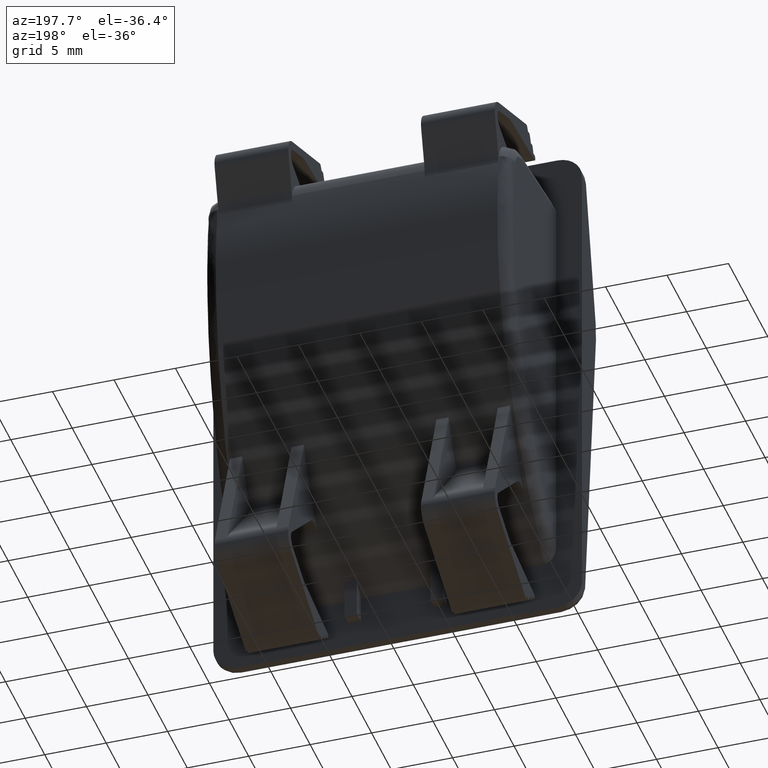
[diagram: clean part render]
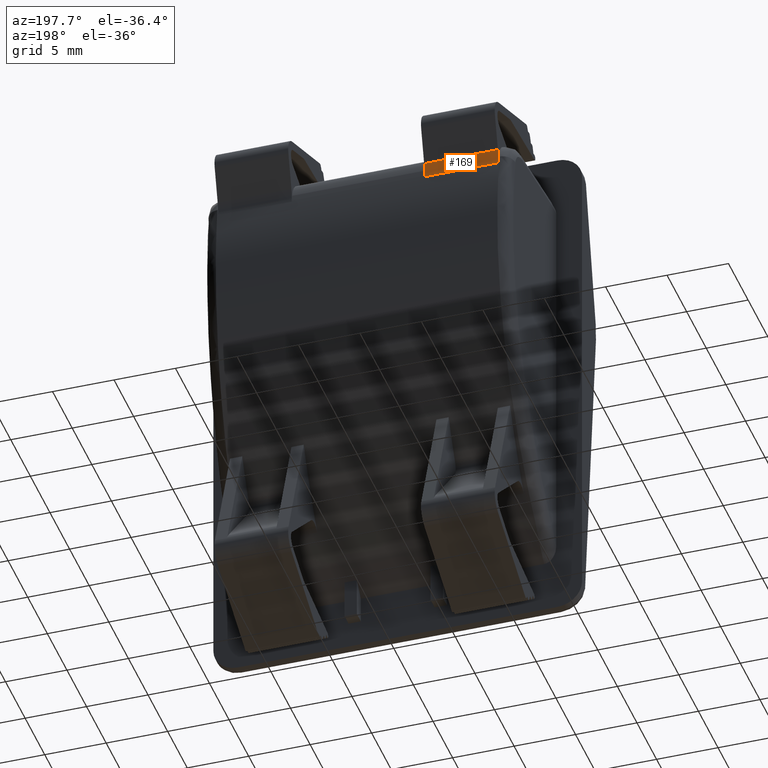
[diagram: same view with one face highlighted and labeled with its STEP entity id]
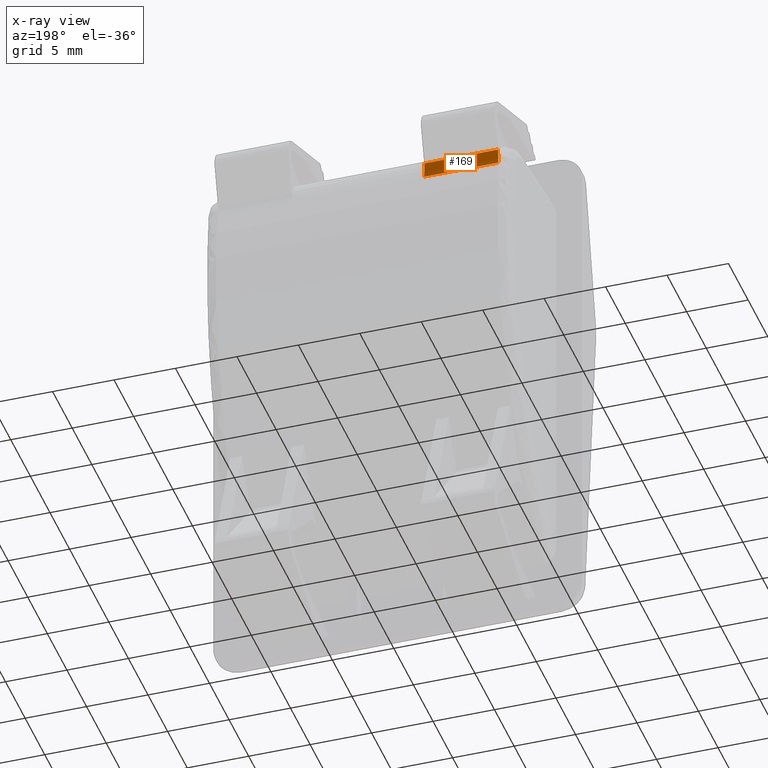
[diagram: x-ray of the same camera — body ghosted, the highlighted face saturated]
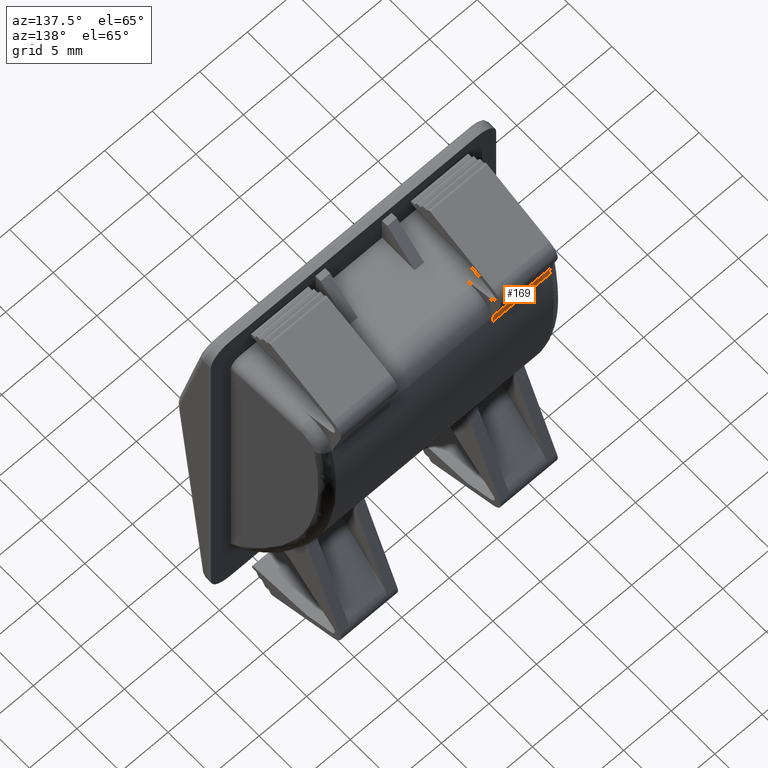
[diagram: same view with one face highlighted and labeled with its STEP entity id]
A machine part, auxiliary view. The second image highlights one B-rep face of the part: STEP entity #169.
The next image is the same camera in x-ray: the body ghosted, the highlighted face saturated — about 0% of this face is hidden behind the body in this view.
A second angle (auxiliary view) of the same face is appended — the face is thin or edge-on in the first view.
In plain terms, the highlighted cylindrical surface (partial cylindrical patch) has radius 3 mm, axis along (1, -0, -0).
Its self-contained STEP definition (entity closure, byte-faithful):
#169=ADVANCED_FACE('',(#1540),#1539,.F.);
#1539=CYLINDRICAL_SURFACE('',#3153,3.00000000000E+000);
#1540=FACE_OUTER_BOUND('',#3154,.T.);
#3150=CARTESIAN_POINT('',(9.88600000000E+002,1.70819010984E+001,8.17488111700E+000));
#3151=DIRECTION('',(1.00000000000E+000,-0.00000000000E+000,-0.00000000000E+000));
#3152=DIRECTION('',(-0.00000000000E+000,-0.00000000000E+000,-1.00000000000E+000));
#3153=AXIS2_PLACEMENT_3D('',#3150,#3151,#3152);
#3154=EDGE_LOOP('',(#4732,#4733,#4734,#4735));
#4732=ORIENTED_EDGE('',*,*,#5575,.F.);
#4733=ORIENTED_EDGE('',*,*,#5518,.F.);
#4734=ORIENTED_EDGE('',*,*,#5576,.T.);
#4735=ORIENTED_EDGE('',*,*,#5577,.T.);
#5518=EDGE_CURVE('',#8232,#8218,#8239,.T.);
#5575=EDGE_CURVE('',#8218,#8617,#8618,.T.);
#5576=EDGE_CURVE('',#8232,#8624,#8625,.T.);
#5577=EDGE_CURVE('',#8624,#8617,#8631,.T.);
#8218=VERTEX_POINT('',#10992);
#8232=VERTEX_POINT('',#11000);
#8239=LINE('',#11004,#11005);
#8617=VERTEX_POINT('',#11233);
#8618=CIRCLE('',#11237,3.00000000000E+000);
#8624=VERTEX_POINT('',#11238);
#8625=CIRCLE('',#11242,3.00000000000E+000);
#8631=LINE('',#11243,#11244);
#10992=CARTESIAN_POINT('',(-1.14000000000E+001,1.41841236195E+001,8.95133825231E+000));
#11000=CARTESIAN_POINT('',(-5.40000000000E+000,1.41841236195E+001,8.95133825231E+000));
#11004=CARTESIAN_POINT('',(-5.40000000000E+000,1.41841236195E+001,8.95133825231E+000));
#11005=VECTOR('',#11006,6.00000000000E+000);
#11006=DIRECTION('',(-1.00000000000E+000,0.00000000000E+000,0.00000000000E+000));
#11233=CARTESIAN_POINT('',(-1.14000000000E+001,1.41128327098E+001,7.74519180617E+000));
#11234=CARTESIAN_POINT('',(-1.14000000000E+001,1.70819010984E+001,8.17488111700E+000));
#11235=DIRECTION('',(1.00000000000E+000,0.00000000000E+000,0.00000000000E+000));
#11236=DIRECTION('',(-0.00000000000E+000,-0.00000000000E+000,1.00000000000E+000));
#11237=AXIS2_PLACEMENT_3D('',#11234,#11235,#11236);
#11238=CARTESIAN_POINT('',(-5.40000000000E+000,1.41128327098E+001,7.74519180617E+000));
#11239=CARTESIAN_POINT('',(-5.40000000000E+000,1.70819010984E+001,8.17488111700E+000));
#11240=DIRECTION('',(1.00000000000E+000,0.00000000000E+000,0.00000000000E+000));
#11241=DIRECTION('',(-0.00000000000E+000,-0.00000000000E+000,1.00000000000E+000));
#11242=AXIS2_PLACEMENT_3D('',#11239,#11240,#11241);
#11243=CARTESIAN_POINT('',(-5.40000000000E+000,1.41128327098E+001,7.74519180617E+000));
#11244=VECTOR('',#11245,6.00000000000E+000);
#11245=DIRECTION('',(-1.00000000000E+000,0.00000000000E+000,0.00000000000E+000));